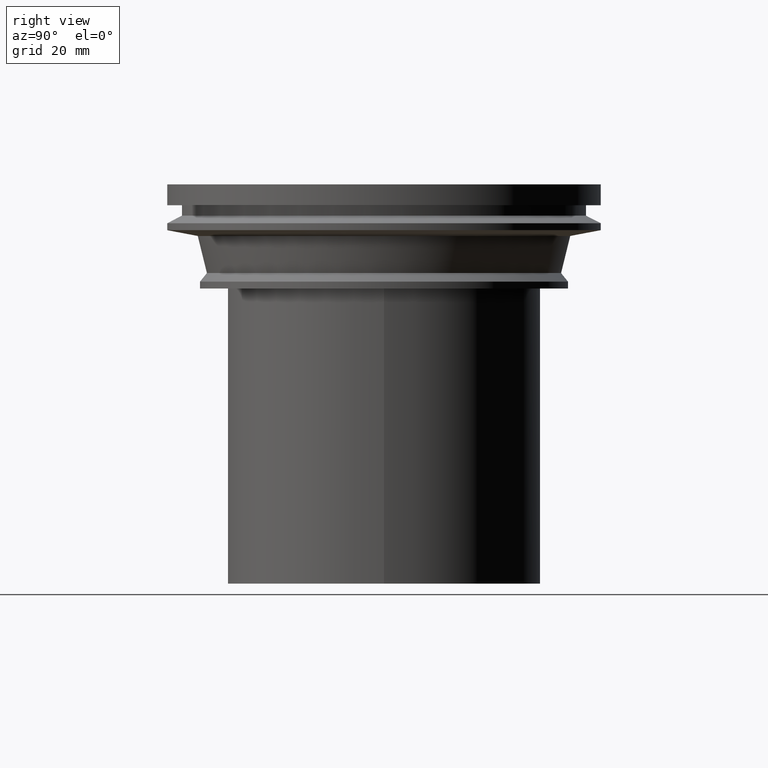
[diagram: clean part render]
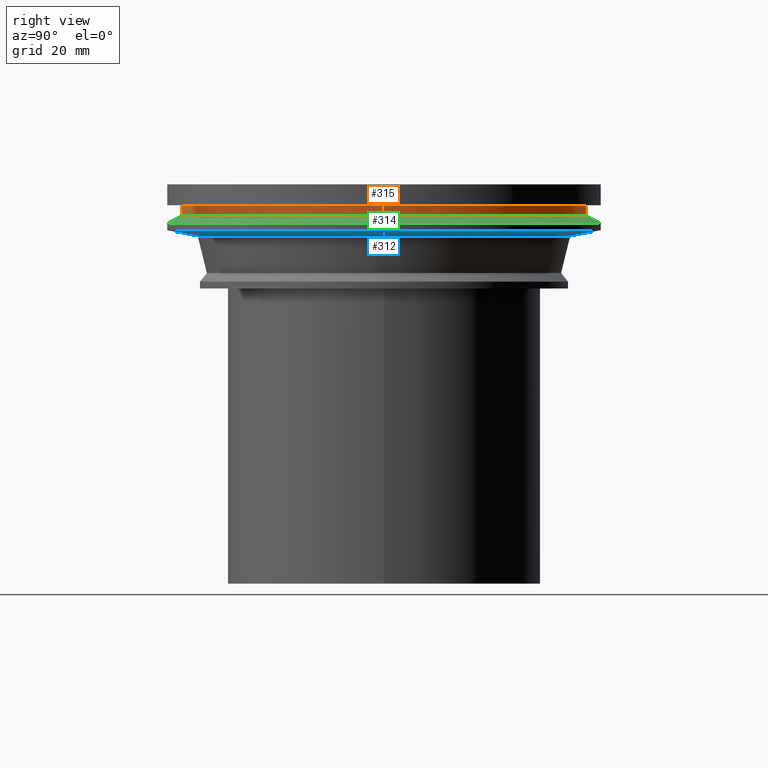
[diagram: same view with three faces highlighted in distinct colors, each labeled with its STEP entity id]
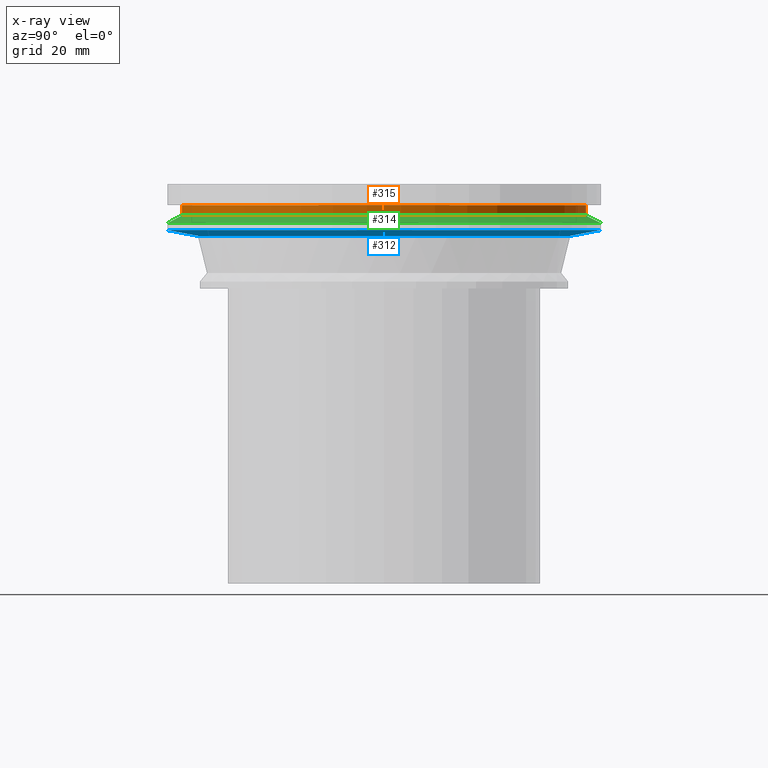
[diagram: x-ray of the same camera — body ghosted, the three highlighted faces saturated]
A machine part, right view with three faces highlighted in distinct colors.
The next image is the same camera in x-ray (body ghosted, the three faces saturated) — at least one of them is partly hidden behind the body in this view.
Their STEP definitions:

[orange] entity #315 — the highlighted cylindrical surface (bore or boss wall) has radius 58.25 mm, axis along (0, 0, -1).
#47=CYLINDRICAL_SURFACE('',#394,58.25);
#98=ORIENTED_EDGE('',*,*,#105,.T.);
#99=ORIENTED_EDGE('',*,*,#125,.F.);
#105=EDGE_CURVE('',#131,#131,#157,.T.);
#125=EDGE_CURVE('',#151,#151,#177,.T.);
#131=VERTEX_POINT('',#524);
#151=VERTEX_POINT('',#584);
#157=CIRCLE('',#353,58.25);
#177=CIRCLE('',#393,58.25);
#228=EDGE_LOOP('',(#98));
#229=EDGE_LOOP('',(#99));
#280=FACE_BOUND('',#228,.T.);
#281=FACE_BOUND('',#229,.T.);
#315=ADVANCED_FACE('',(#280,#281),#47,.T.);
#353=AXIS2_PLACEMENT_3D('',#523,#420,#421);
#393=AXIS2_PLACEMENT_3D('',#583,#500,#501);
#394=AXIS2_PLACEMENT_3D('',#585,#502,#503);
#420=DIRECTION('',(0.,0.,-1.));
#421=DIRECTION('',(-1.,0.,0.));
#500=DIRECTION('',(0.,0.,-1.));
#501=DIRECTION('',(-1.,0.,0.));
#502=DIRECTION('',(0.,0.,-1.));
#503=DIRECTION('',(-1.,0.,0.));
#523=CARTESIAN_POINT('',(0.,0.,-6.00000000000001));
#524=CARTESIAN_POINT('',(-58.25,0.,-6.00000000000001));
#583=CARTESIAN_POINT('',(0.,0.,-9.00000000000001));
#584=CARTESIAN_POINT('',(-58.25,0.,-9.00000000000001));
#585=CARTESIAN_POINT('',(0.,0.,-50.));

[blue] entity #312 — the highlighted conical surface has half-angle 79.348 deg.
#25=CONICAL_SURFACE('',#388,53.653,1.38488199406689);
#92=ORIENTED_EDGE('',*,*,#123,.T.);
#93=ORIENTED_EDGE('',*,*,#122,.F.);
#122=EDGE_CURVE('',#148,#148,#174,.T.);
#123=EDGE_CURVE('',#149,#149,#175,.T.);
#148=VERTEX_POINT('',#575);
#149=VERTEX_POINT('',#578);
#174=CIRCLE('',#387,53.653);
#175=CIRCLE('',#389,62.5);
#222=EDGE_LOOP('',(#92));
#223=EDGE_LOOP('',(#93));
#274=FACE_BOUND('',#222,.T.);
#275=FACE_BOUND('',#223,.T.);
#312=ADVANCED_FACE('',(#274,#275),#25,.T.);
#387=AXIS2_PLACEMENT_3D('',#574,#488,#489);
#388=AXIS2_PLACEMENT_3D('',#576,#490,#491);
#389=AXIS2_PLACEMENT_3D('',#577,#492,#493);
#488=DIRECTION('',(0.,0.,-1.));
#489=DIRECTION('',(-1.,0.,0.));
#490=DIRECTION('',(0.,0.,1.));
#491=DIRECTION('',(1.,0.,0.));
#492=DIRECTION('',(0.,0.,-1.));
#493=DIRECTION('',(-1.,0.,0.));
#574=CARTESIAN_POINT('',(0.,0.,-14.848));
#575=CARTESIAN_POINT('',(-53.653,0.,-14.848));
#576=CARTESIAN_POINT('',(0.,0.,-14.848));
#577=CARTESIAN_POINT('',(0.,0.,-13.184));
#578=CARTESIAN_POINT('',(-62.5,0.,-13.184));

[green] entity #314 — the highlighted conical surface has half-angle 62.802 deg.
#26=CONICAL_SURFACE('',#392,62.5,1.0961046142386);
#96=ORIENTED_EDGE('',*,*,#125,.T.);
#97=ORIENTED_EDGE('',*,*,#124,.F.);
#124=EDGE_CURVE('',#150,#150,#176,.T.);
#125=EDGE_CURVE('',#151,#151,#177,.T.);
#150=VERTEX_POINT('',#581);
#151=VERTEX_POINT('',#584);
#176=CIRCLE('',#391,62.5);
#177=CIRCLE('',#393,58.25);
#226=EDGE_LOOP('',(#96));
#227=EDGE_LOOP('',(#97));
#278=FACE_BOUND('',#226,.T.);
#279=FACE_BOUND('',#227,.T.);
#314=ADVANCED_FACE('',(#278,#279),#26,.T.);
#391=AXIS2_PLACEMENT_3D('',#580,#496,#497);
#392=AXIS2_PLACEMENT_3D('',#582,#498,#499);
#393=AXIS2_PLACEMENT_3D('',#583,#500,#501);
#496=DIRECTION('',(0.,0.,-1.));
#497=DIRECTION('',(-1.,0.,0.));
#498=DIRECTION('',(0.,0.,-1.));
#499=DIRECTION('',(-1.,0.,0.));
#500=DIRECTION('',(0.,0.,-1.));
#501=DIRECTION('',(-1.,0.,0.));
#580=CARTESIAN_POINT('',(0.,0.,-11.184));
#581=CARTESIAN_POINT('',(-62.5,0.,-11.184));
#582=CARTESIAN_POINT('',(0.,0.,-11.184));
#583=CARTESIAN_POINT('',(0.,0.,-9.00000000000001));
#584=CARTESIAN_POINT('',(-58.25,0.,-9.00000000000001));